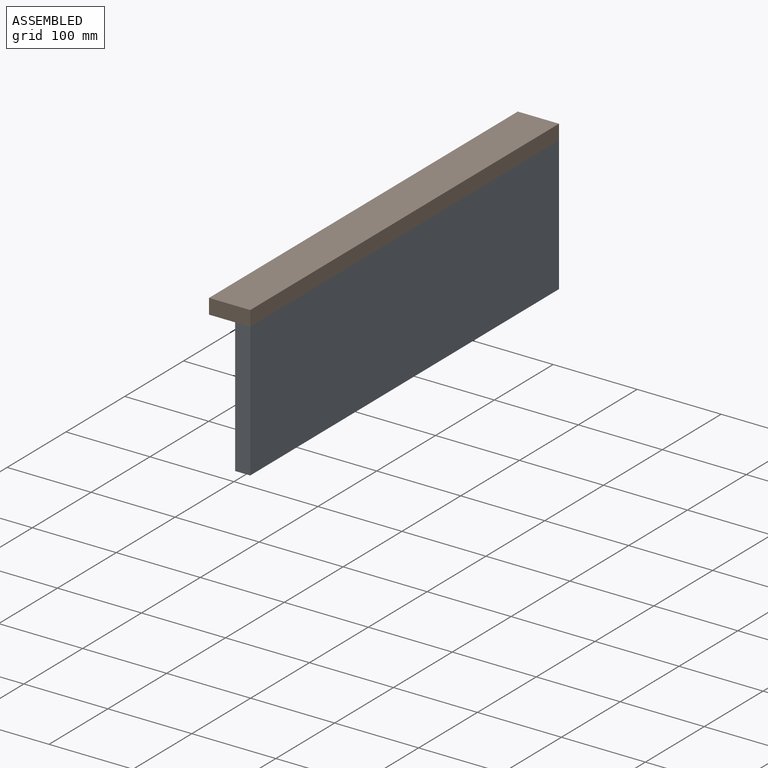
[diagram: assembled view]
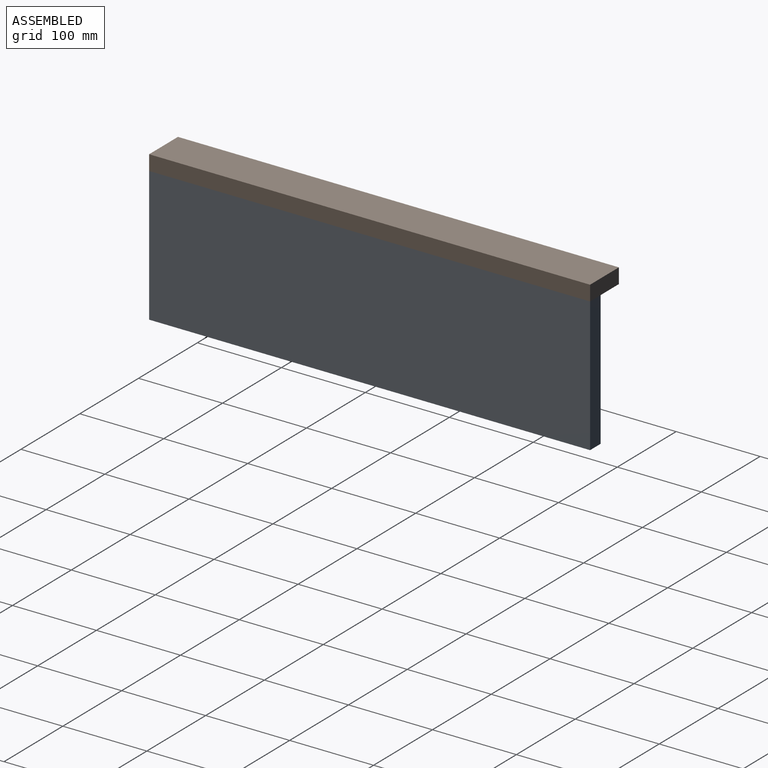
[diagram: assembled view, second angle]
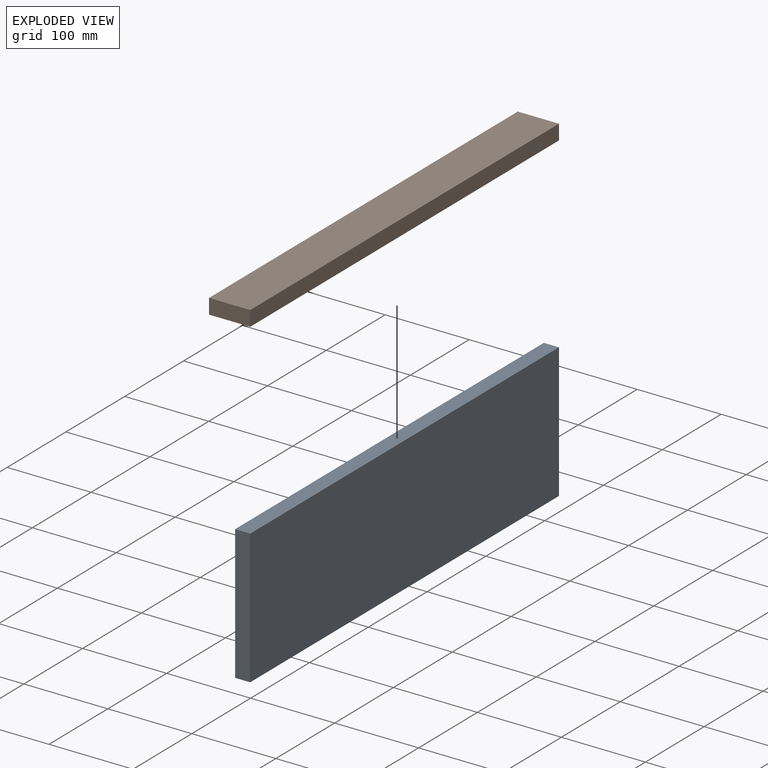
[diagram: exploded view]
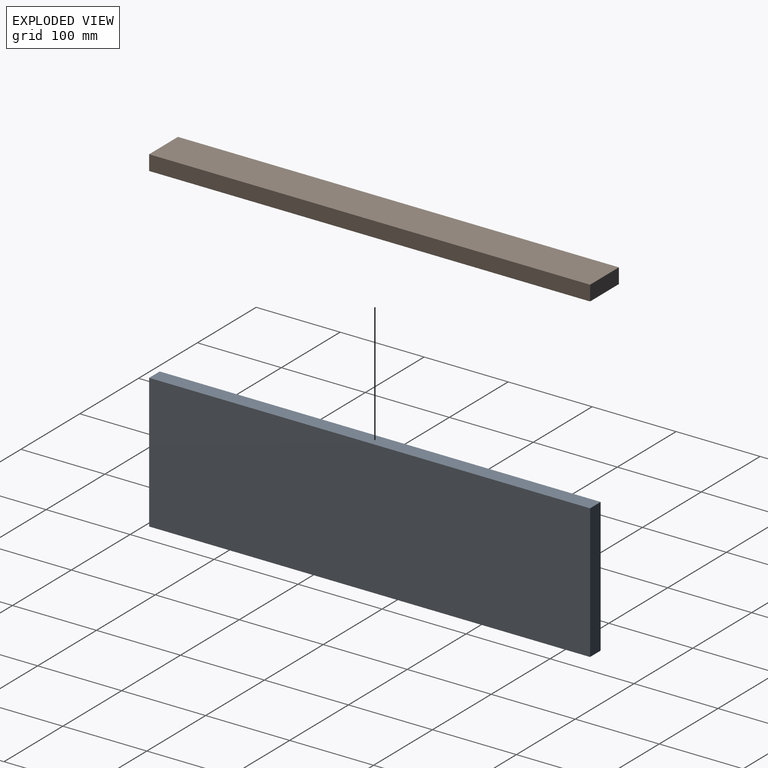
[diagram: exploded view, second angle]
ASSEMBLY  parts=2 mates=3
PART A: 6 faces, bbox 18x525x160 mm
  f0: plane 525x160mm, normal (1,0,0), area 84000mm2, adj f1,f3,f4,f5
  f1: plane 525x18mm, normal (0,0,1), area 9450mm2, adj f0,f2,f4,f5
  f2: plane 525x160mm, normal (-1,0,0), area 84000mm2, adj f1,f3,f4,f5
  f3: plane 525x18mm, normal (0,0,-1), area 9450mm2, adj f0,f2,f4,f5
  f4: plane 160x18mm, normal (0,1,0), area 2880mm2, adj f0,f1,f2,f3
  f5: plane 160x18mm, normal (0,-1,0), area 2880mm2, adj f0,f1,f2,f3
PART B: 6 faces, bbox 49x525x18 mm
  f0: plane 525x18mm, normal (-1,0,0), area 9450mm2, adj f1,f3,f4,f5
  f1: plane 525x49mm, normal (0,0,-1), area 25725mm2, adj f0,f2,f4,f5
  f2: plane 525x18mm, normal (1,0,0), area 9450mm2, adj f1,f3,f4,f5
  f3: plane 525x49mm, normal (0,0,1), area 25725mm2, adj f0,f2,f4,f5
  f4: plane 49x18mm, normal (0,1,0), area 882mm2, adj f0,f1,f2,f3
  f5: plane 49x18mm, normal (0,-1,0), area 882mm2, adj f0,f1,f2,f3
PLACE A t=(71,-285,0)mm
PLACE B t=(40,-285,160)mm
MATE planar B.f1 <-> A.f1  axis (0,0,-1) through (64.5,-22.5,160)mm
MATE planar B.f2 <-> A.f0  axis (1,0,0) through (89,-22.5,169)mm
MATE planar B.f5 <-> A.f5  axis (0,-1,0) through (64.5,-285,169)mm
